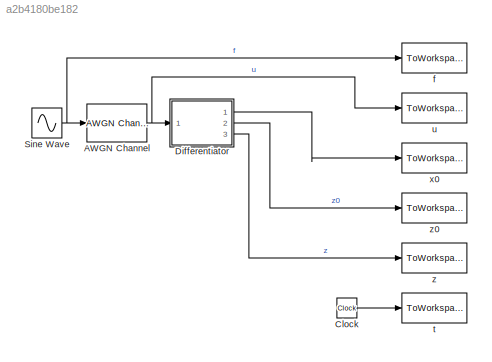
MODEL slx_a2b4180be182
KIND model
CONFIG AbsTol = auto
CONFIG EnableMultiTasking = on
CONFIG FixedStep = 0.001
CONFIG MaxStep = auto
CONFIG MinStep = auto
CONFIG RelTol = 1e-3
CONFIG SampleTimeConstraint = Unconstrained
CONFIG SolverName = FixedStepDiscrete
CONFIG StartTime = 0.0
CONFIG StopTime = 20
WORKSPACE source: mxarray member
WORKSPACE enabled_mu = 'off'
WORKSPACE maskObj: Simulink.Mask (value not decoded)
WORKSPACE val_d = -1
WORKSPACE val_m = 2
BLOCK [Reference] AWGN Channel  REF=commchan3/AWGN
Channel
  Ports = [1, 1]
  SourceBlock = commchan3/AWGN\nChannel
  SourceProductBaseCode = CM
  SourceType = AWGN Channel
  UserDataPersistent = on
BLOCK [Clock] Clock
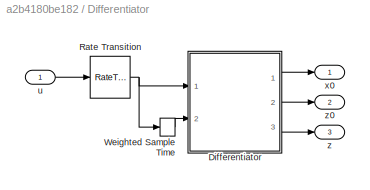
BLOCK [SubSystem] Differentiator
  Ports = [1, 3]
  RequestExecContextInheritance = off
  TreatAsAtomicUnit = on
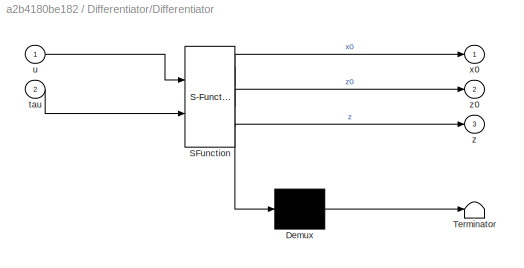
BLOCK [SubSystem] Differentiator/Differentiator
  ErrorFcn = Stateflow.Translate.translate
  PermitHierarchicalResolution = ExplicitOnly
  Ports = [2, 3]
  RequestExecContextInheritance = off
  SFBlockType = MATLAB Function
  SystemSampleTime = Ts
  TreatAsAtomicUnit = on
BLOCK [Demux] Differentiator/Differentiator/ Demux 
  Outputs = 1
  Ports = [1, 1]
BLOCK [S-Function] Differentiator/Differentiator/ SFunction 
  EnableBusSupport = on
  FunctionName = sf_sfun
  Parameters = Ts,d,m,mu,n,nf,r
  PortCounts = [2 4]
  Ports = [2, 4]
  SFcnIsStateOwnerBlock = off
  SFunctionDeploymentMode = off
  Tag = Stateflow S-Function 1
BLOCK [Terminator] Differentiator/Differentiator/ Terminator 
BLOCK [Inport] Differentiator/Differentiator/tau
  Port = 2
BLOCK [Inport] Differentiator/Differentiator/u
BLOCK [Outport] Differentiator/Differentiator/x0
  VectorParamsAs1DForOutWhenUnconnected = off
BLOCK [Outport] Differentiator/Differentiator/z
  Port = 3
  VectorParamsAs1DForOutWhenUnconnected = off
BLOCK [Outport] Differentiator/Differentiator/z0
  Port = 2
  VectorParamsAs1DForOutWhenUnconnected = off
BLOCK [RateTransition] Differentiator/Rate Transition
BLOCK [SampleTimeMath] Differentiator/Weighted Sample Time
  TsampMathOp = Ts Only
BLOCK [Inport] Differentiator/u
BLOCK [Outport] Differentiator/x0
  VectorParamsAs1DForOutWhenUnconnected = off
BLOCK [Outport] Differentiator/z
  Port = 3
  VectorParamsAs1DForOutWhenUnconnected = off
BLOCK [Outport] Differentiator/z0
  Port = 2
  VectorParamsAs1DForOutWhenUnconnected = off
BLOCK [Sin] Sine Wave
  Bias = 2
  Ports = [0, 1]
BLOCK [ToWorkspace] f
  FixptAsFi = on
  MaxDataPoints = inf
  Ports = [1]
  SampleTime = -1
  Save2DSignal = 2-D array (concatenate along first dimension)
  VariableName = f
BLOCK [ToWorkspace] t
  FixptAsFi = on
  MaxDataPoints = inf
  Ports = [1]
  SampleTime = -1
  Save2DSignal = 2-D array (concatenate along first dimension)
  VariableName = t
BLOCK [ToWorkspace] u
  FixptAsFi = on
  MaxDataPoints = inf
  Ports = [1]
  SampleTime = -1
  Save2DSignal = 2-D array (concatenate along first dimension)
  VariableName = u
BLOCK [ToWorkspace] x0
  FixptAsFi = on
  MaxDataPoints = inf
  Ports = [1]
  SampleTime = -1
  Save2DSignal = 2-D array (concatenate along first dimension)
  VariableName = x0
BLOCK [ToWorkspace] z
  FixptAsFi = on
  MaxDataPoints = inf
  Ports = [1]
  SampleTime = -1
  Save2DSignal = 2-D array (concatenate along first dimension)
  VariableName = z
BLOCK [ToWorkspace] z0
  FixptAsFi = on
  MaxDataPoints = inf
  Ports = [1]
  SampleTime = -1
  Save2DSignal = 2-D array (concatenate along first dimension)
  VariableName = z0
NET AWGN Channel:1 -> Differentiator:1, u:1
LINE Clock:1 -> t:1
LINE Differentiator/Differentiator:1 -> Differentiator/x0:1
LINE Differentiator/Differentiator:2 -> Differentiator/z0:1
LINE Differentiator/Differentiator:3 -> Differentiator/z:1
NET Differentiator/Rate Transition:1 -> Differentiator/Differentiator:1, Differentiator/Weighted Sample Time:1
LINE Differentiator/Weighted Sample Time:1 -> Differentiator/Differentiator:2
LINE Differentiator/u:1 -> Differentiator/Rate Transition:1
LINE Differentiator:1 -> x0:1
LINE Differentiator:2 -> z0:1
LINE Differentiator:3 -> z:1
NET Sine Wave:1 -> AWGN Channel:1, f:1
note: NET lines group one-source signal fan-out (src -> all destinations, sorted); 1:1 wires keep LINE
CHART Differentiator/Differentiator states=1 transitions=1
  STATE_LABEL 'eML_blk_kernel()'
  STATE_LABEL 'SCRIPT:\nfunction [x0, z0, z] = differentiator(u, n, nf, d, r, m, mu, tau, Ts)\n    % Calculates the derivatives up to n-th order of a given signal u\n    %   u...  signal vector\n    %   n...  maximum order of derivative\n    %   nf... filtering order\n    %   r...  robustness factor\n    %   d...  homogeneity factor: between -1 for Robust Exact Differentiator and 0 for Linear Differentiator\n    %   m.....<+3608ch>'
CHART  states=0 transitions=0
